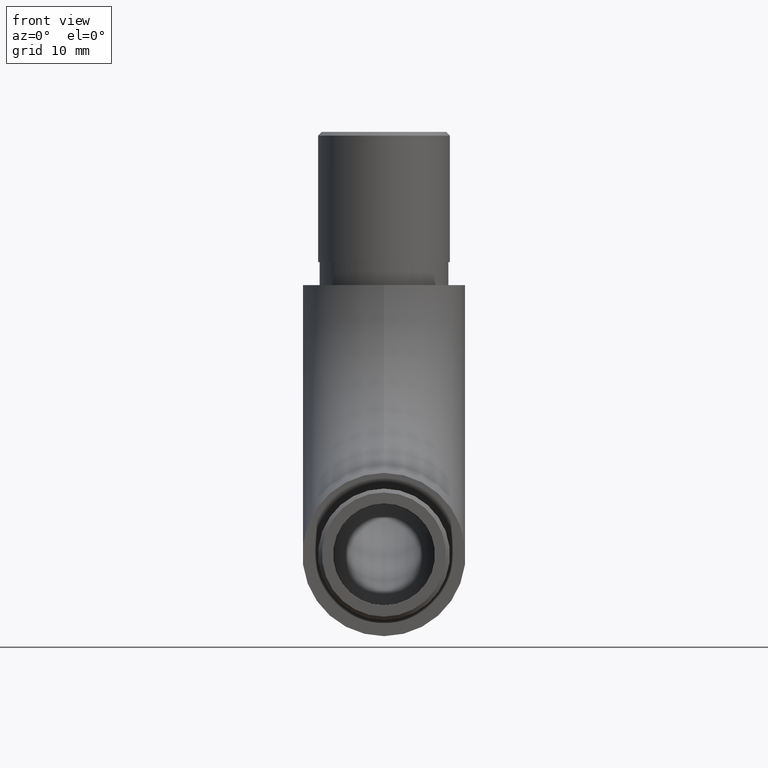
[diagram: clean part render]
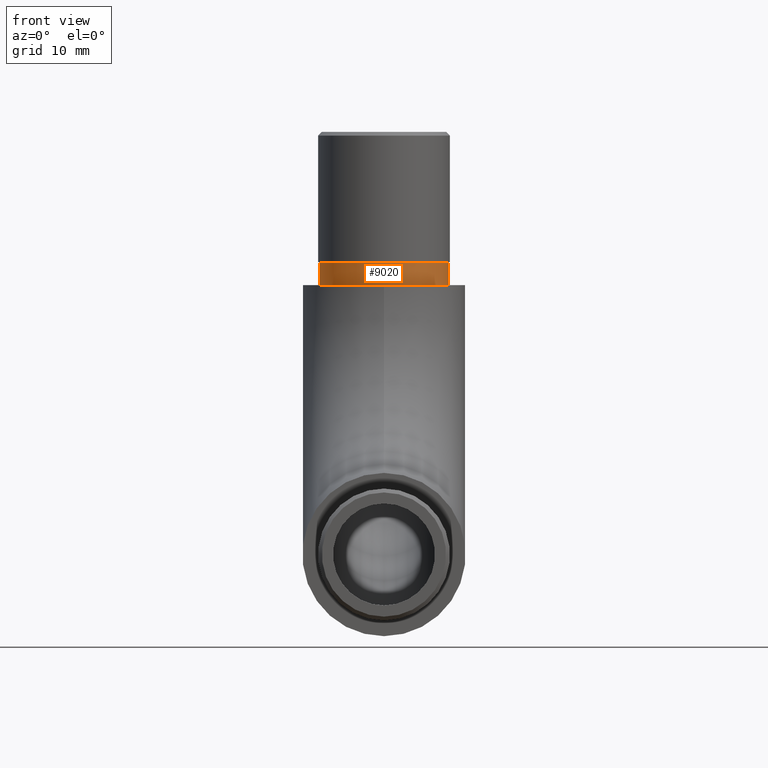
[diagram: same view with one face highlighted and labeled with its STEP entity id]
A machine part, front view. The second image highlights one B-rep face of the part: STEP entity #9020.
In plain terms, the highlighted cylindrical surface (bore or boss wall) has radius 8.4 mm, axis along (-0, -0, -1).
Its self-contained STEP definition (entity closure, byte-faithful):
#108 = CARTESIAN_POINT ( 'NONE',  ( 0.0000000000000000000, 35.14999999999999900, 48.80000000000001100 ) ) ;
#205 = DIRECTION ( 'NONE',  ( 0.0000000000000000000, 0.0000000000000000000, 1.000000000000000000 ) ) ;
#724 = AXIS2_PLACEMENT_3D ( 'NONE', #4591, #8702, #8542 ) ;
#1508 = CYLINDRICAL_SURFACE ( 'NONE', #724, 8.400000000000002100 ) ;
#2088 = DIRECTION ( 'NONE',  ( 1.000000000000000000, 0.0000000000000000000, 0.0000000000000000000 ) ) ;
#2537 = VERTEX_POINT ( 'NONE', #11783 ) ;
#2678 = CIRCLE ( 'NONE', #12150, 8.400000000000002100 ) ;
#3085 = EDGE_LOOP ( 'NONE', ( #10168 ) ) ;
#3498 = FACE_OUTER_BOUND ( 'NONE', #5312, .T. ) ;
#3774 = CIRCLE ( 'NONE', #6311, 8.400000000000002100 ) ;
#4127 = CARTESIAN_POINT ( 'NONE',  ( 0.0000000000000000000, 35.14999999999999900, 45.80000000000000400 ) ) ;
#4591 = CARTESIAN_POINT ( 'NONE',  ( 0.0000000000000000000, 35.14999999999999900, 48.80000000000001100 ) ) ;
#5312 = EDGE_LOOP ( 'NONE', ( #10658 ) ) ;
#6311 = AXIS2_PLACEMENT_3D ( 'NONE', #4127, #8964, #7212 ) ;
#7212 = DIRECTION ( 'NONE',  ( 1.000000000000000000, 0.0000000000000000000, 0.0000000000000000000 ) ) ;
#7848 = CARTESIAN_POINT ( 'NONE',  ( 8.400000000000002100, 35.14999999999999900, 48.80000000000001100 ) ) ;
#8542 = DIRECTION ( 'NONE',  ( -1.000000000000000000, 0.0000000000000000000, 0.0000000000000000000 ) ) ;
#8702 = DIRECTION ( 'NONE',  ( -0.0000000000000000000, -0.0000000000000000000, -1.000000000000000000 ) ) ;
#8964 = DIRECTION ( 'NONE',  ( 0.0000000000000000000, 0.0000000000000000000, 1.000000000000000000 ) ) ;
#9020 = ADVANCED_FACE ( 'NONE', ( #3498, #9778 ), #1508, .T. ) ;
#9778 = FACE_OUTER_BOUND ( 'NONE', #3085, .T. ) ;
#10168 = ORIENTED_EDGE ( 'NONE', *, *, #12231, .T. ) ;
#10658 = ORIENTED_EDGE ( 'NONE', *, *, #11243, .F. ) ;
#11243 = EDGE_CURVE ( 'NONE', #12107, #12107, #2678, .T. ) ;
#11783 = CARTESIAN_POINT ( 'NONE',  ( 8.400000000000002100, 35.14999999999999900, 45.80000000000000400 ) ) ;
#12107 = VERTEX_POINT ( 'NONE', #7848 ) ;
#12150 = AXIS2_PLACEMENT_3D ( 'NONE', #108, #205, #2088 ) ;
#12231 = EDGE_CURVE ( 'NONE', #2537, #2537, #3774, .T. ) ;